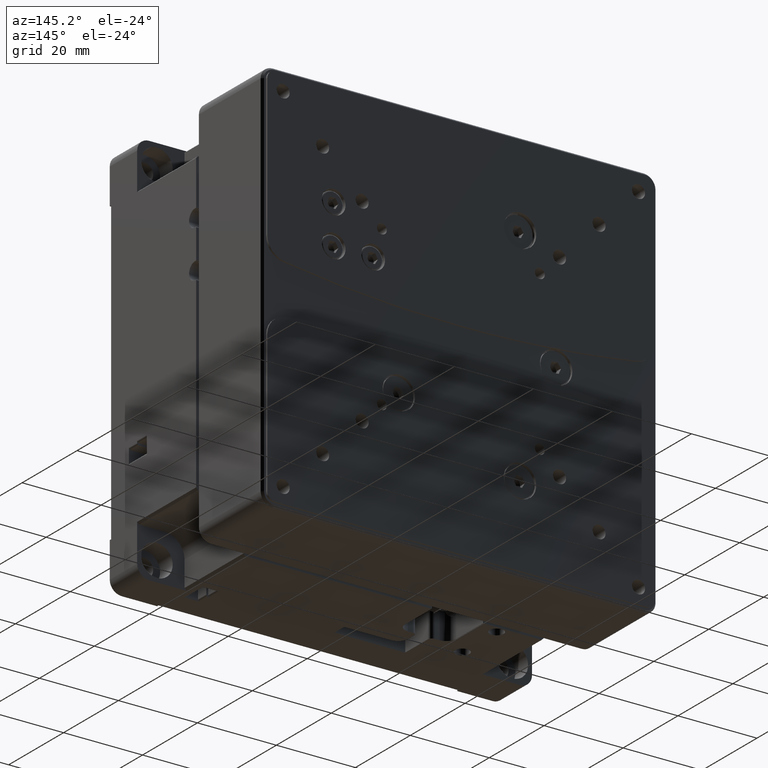
[diagram: clean part render]
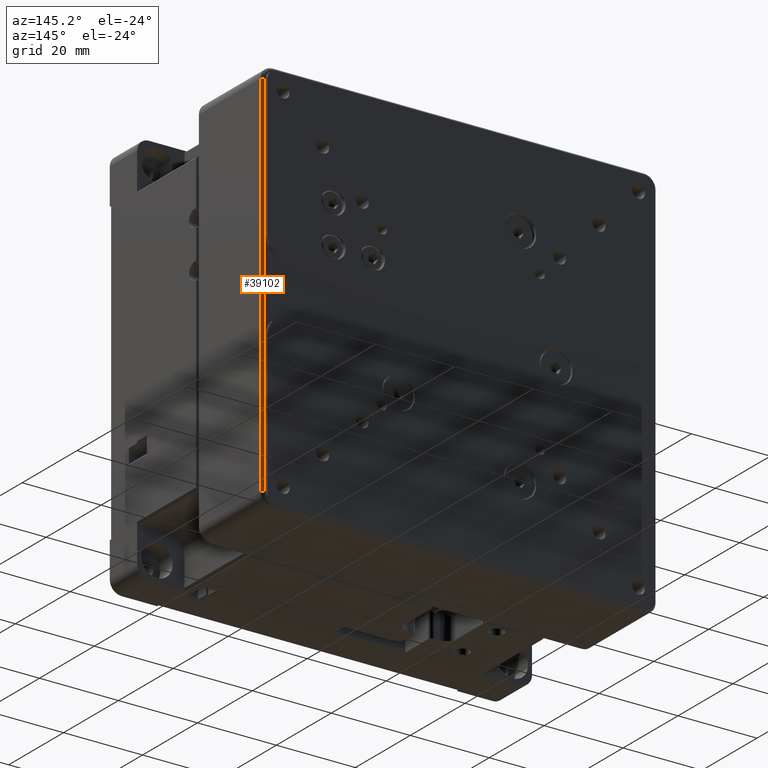
[diagram: same view with one face highlighted and labeled with its STEP entity id]
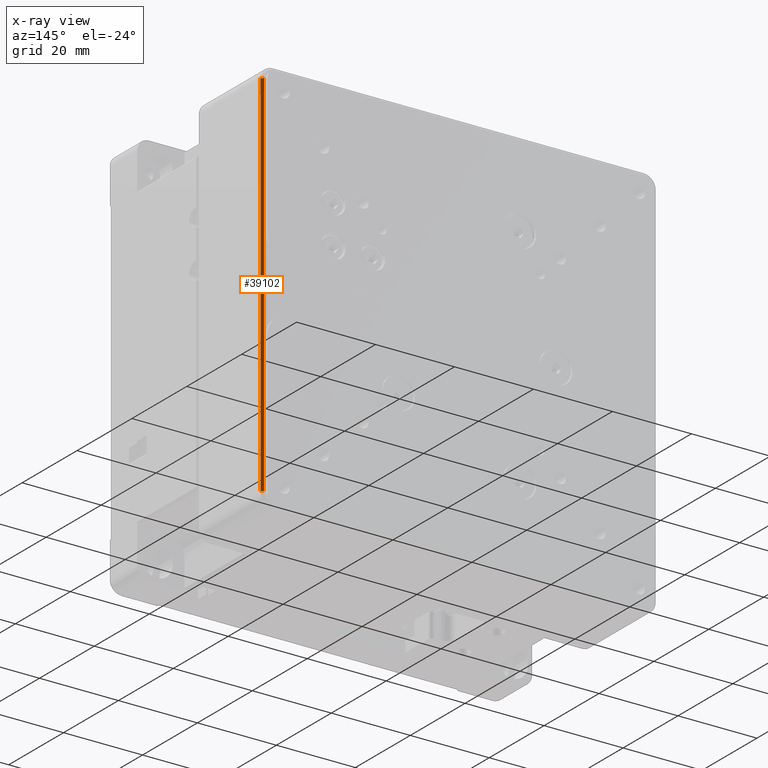
[diagram: x-ray of the same camera — body ghosted, the highlighted face saturated]
A machine part, auxiliary view. The second image highlights one B-rep face of the part: STEP entity #39102.
The next image is the same camera in x-ray: the body ghosted, the highlighted face saturated — about 0% of this face is hidden behind the body in this view.
In plain terms, the highlighted planar face has unit normal (-0.7071, -0.7071, 0).
Its self-contained STEP definition (entity closure, byte-faithful):
#2481 = CARTESIAN_POINT ( 'NONE',  ( 49.49999999999045031, 55.49999999999999289, 0.000000000000000000 ) ) ;
#6273 = CARTESIAN_POINT ( 'NONE',  ( 49.49999999995963407, 55.50000000005162093, -47.00000000000001421 ) ) ;
#7534 = VERTEX_POINT ( 'NONE', #54804 ) ;
#9244 = PLANE ( 'NONE',  #24935 ) ;
#9365 = DIRECTION ( 'NONE',  ( -0.000000000000000000, -0.000000000000000000, -1.000000000000000000 ) ) ;
#9708 = VERTEX_POINT ( 'NONE', #6273 ) ;
#9831 = DIRECTION ( 'NONE',  ( 0.7071067811865474617, -0.7071067811865474617, 0.000000000000000000 ) ) ;
#9947 = VECTOR ( 'NONE', #50579, 1000.000000000000114 ) ;
#13842 = FACE_OUTER_BOUND ( 'NONE', #15939, .T. ) ;
#15384 = ORIENTED_EDGE ( 'NONE', *, *, #25509, .T. ) ;
#15939 = EDGE_LOOP ( 'NONE', ( #26639, #16062, #55157, #15384 ) ) ;
#16062 = ORIENTED_EDGE ( 'NONE', *, *, #20856, .T. ) ;
#18633 = DIRECTION ( 'NONE',  ( 0.7071067812267419761, -0.7071067811463531694, 0.000000000000000000 ) ) ;
#18677 = VERTEX_POINT ( 'NONE', #53759 ) ;
#19501 = CARTESIAN_POINT ( 'NONE',  ( 49.49999999999999289, 55.49999999999999289, 47.00000000000002132 ) ) ;
#20856 = EDGE_CURVE ( 'NONE', #9708, #18677, #41898, .T. ) ;
#22128 = LINE ( 'NONE', #48866, #36450 ) ;
#23548 = LINE ( 'NONE', #19501, #9947 ) ;
#24935 = AXIS2_PLACEMENT_3D ( 'NONE', #27655, #53278, #9831 ) ;
#25509 = EDGE_CURVE ( 'NONE', #38261, #7534, #34214, .T. ) ;
#26639 = ORIENTED_EDGE ( 'NONE', *, *, #51790, .F. ) ;
#27655 = CARTESIAN_POINT ( 'NONE',  ( 49.49999999999999289, 55.49999999999999289, 0.000000000000000000 ) ) ;
#33508 = EDGE_CURVE ( 'NONE', #38261, #18677, #23548, .T. ) ;
#34214 = LINE ( 'NONE', #48778, #51707 ) ;
#36450 = VECTOR ( 'NONE', #18633, 999.9999999999998863 ) ;
#38258 = CARTESIAN_POINT ( 'NONE',  ( 49.99999999999999289, 54.99999999999999289, 46.99999999999999289 ) ) ;
#38261 = VERTEX_POINT ( 'NONE', #38258 ) ;
#39102 = ADVANCED_FACE ( 'NONE', ( #13842 ), #9244, .F. ) ;
#41898 = LINE ( 'NONE', #2481, #43549 ) ;
#43549 = VECTOR ( 'NONE', #55158, 1000.000000000000000 ) ;
#48778 = CARTESIAN_POINT ( 'NONE',  ( 49.99999999999999289, 54.99999999999999289, 49.99999999999998579 ) ) ;
#48866 = CARTESIAN_POINT ( 'NONE',  ( 499000.0000000000000, -498894.9999432758777, -47.00000000000001421 ) ) ;
#50579 = DIRECTION ( 'NONE',  ( -0.7071067811865474617, 0.7071067811865474617, -0.000000000000000000 ) ) ;
#51707 = VECTOR ( 'NONE', #9365, 1000.000000000000000 ) ;
#51790 = EDGE_CURVE ( 'NONE', #9708, #7534, #22128, .T. ) ;
#53278 = DIRECTION ( 'NONE',  ( -0.7071067811865475727, -0.7071067811865475727, 0.000000000000000000 ) ) ;
#53759 = CARTESIAN_POINT ( 'NONE',  ( 49.49999999998323119, 55.50000000001437428, 47.00000000000002132 ) ) ;
#54804 = CARTESIAN_POINT ( 'NONE',  ( 50.00000000001704592, 55.00000000000169820, -47.00000000000001421 ) ) ;
#55157 = ORIENTED_EDGE ( 'NONE', *, *, #33508, .F. ) ;
#55158 = DIRECTION ( 'NONE',  ( -0.000000000000000000, 0.000000000000000000, 1.000000000000000000 ) ) ;